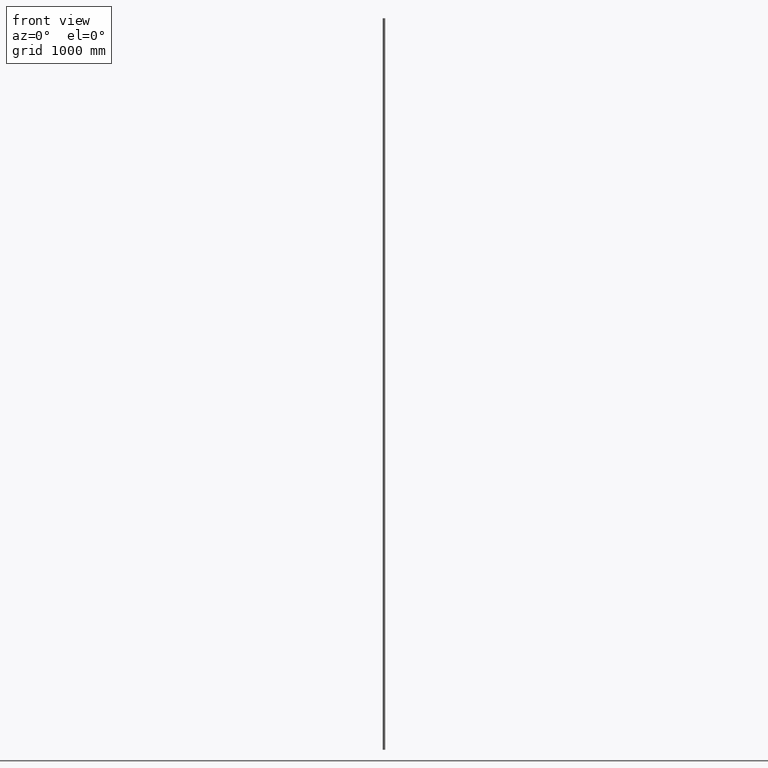
[diagram: clean part render]
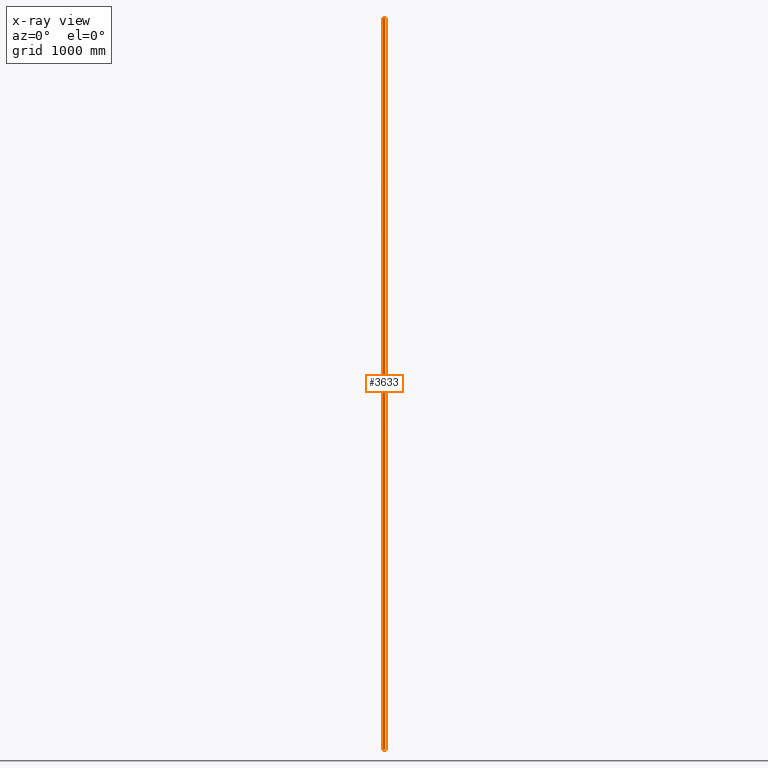
[diagram: x-ray — body ghosted, one internal face saturated and labeled with its STEP entity id]
A machine part, front view, then the same camera in x-ray: the body is ghosted and one INTERNAL B-rep face — a face not visible from any outside direction — is saturated and labeled: STEP entity #3633.
In plain terms, the highlighted cylindrical surface (bore or boss wall) has radius 10.65 mm, axis along (-0, -0, -1).
Its self-contained STEP definition (entity closure, byte-faithful):
#585 = CARTESIAN_POINT ( 'NONE',  ( 0.000000000000000000, 0.000000000000000000, 3000.000000000000000 ) ) ;
#586 = FACE_OUTER_BOUND ( 'NONE', #5879, .T. ) ;
#1158 = DIRECTION ( 'NONE',  ( 0.000000000000000000, 0.000000000000000000, 1.000000000000000000 ) ) ;
#2186 = CIRCLE ( 'NONE', #5005, 10.65000000000000036 ) ;
#2434 = DIRECTION ( 'NONE',  ( -1.000000000000000000, 0.000000000000000000, 0.000000000000000000 ) ) ;
#2548 = DIRECTION ( 'NONE',  ( 0.000000000000000000, 0.000000000000000000, 1.000000000000000000 ) ) ;
#3136 = CARTESIAN_POINT ( 'NONE',  ( 10.65000000000000036, 0.000000000000000000, 3000.000000000000000 ) ) ;
#3499 = AXIS2_PLACEMENT_3D ( 'NONE', #11959, #1158, #4930 ) ;
#3633 = ADVANCED_FACE ( 'NONE', ( #586, #9602 ), #4610, .T. ) ;
#3823 = EDGE_LOOP ( 'NONE', ( #11251 ) ) ;
#4512 = VERTEX_POINT ( 'NONE', #5901 ) ;
#4610 = CYLINDRICAL_SURFACE ( 'NONE', #9901, 10.65000000000000036 ) ;
#4930 = DIRECTION ( 'NONE',  ( 1.000000000000000000, 0.000000000000000000, 0.000000000000000000 ) ) ;
#5005 = AXIS2_PLACEMENT_3D ( 'NONE', #12495, #2548, #6626 ) ;
#5879 = EDGE_LOOP ( 'NONE', ( #7181 ) ) ;
#5901 = CARTESIAN_POINT ( 'NONE',  ( 10.65000000000000036, 0.000000000000000000, -3000.000000000000000 ) ) ;
#6626 = DIRECTION ( 'NONE',  ( 1.000000000000000000, 0.000000000000000000, 0.000000000000000000 ) ) ;
#7181 = ORIENTED_EDGE ( 'NONE', *, *, #12409, .F. ) ;
#7543 = DIRECTION ( 'NONE',  ( -0.000000000000000000, -0.000000000000000000, -1.000000000000000000 ) ) ;
#7557 = VERTEX_POINT ( 'NONE', #3136 ) ;
#9602 = FACE_OUTER_BOUND ( 'NONE', #3823, .T. ) ;
#9901 = AXIS2_PLACEMENT_3D ( 'NONE', #585, #7543, #2434 ) ;
#11251 = ORIENTED_EDGE ( 'NONE', *, *, #12239, .T. ) ;
#11959 = CARTESIAN_POINT ( 'NONE',  ( 0.000000000000000000, 0.000000000000000000, 3000.000000000000000 ) ) ;
#12239 = EDGE_CURVE ( 'NONE', #4512, #4512, #2186, .T. ) ;
#12409 = EDGE_CURVE ( 'NONE', #7557, #7557, #12868, .T. ) ;
#12495 = CARTESIAN_POINT ( 'NONE',  ( 0.000000000000000000, 0.000000000000000000, -3000.000000000000000 ) ) ;
#12868 = CIRCLE ( 'NONE', #3499, 10.65000000000000036 ) ;